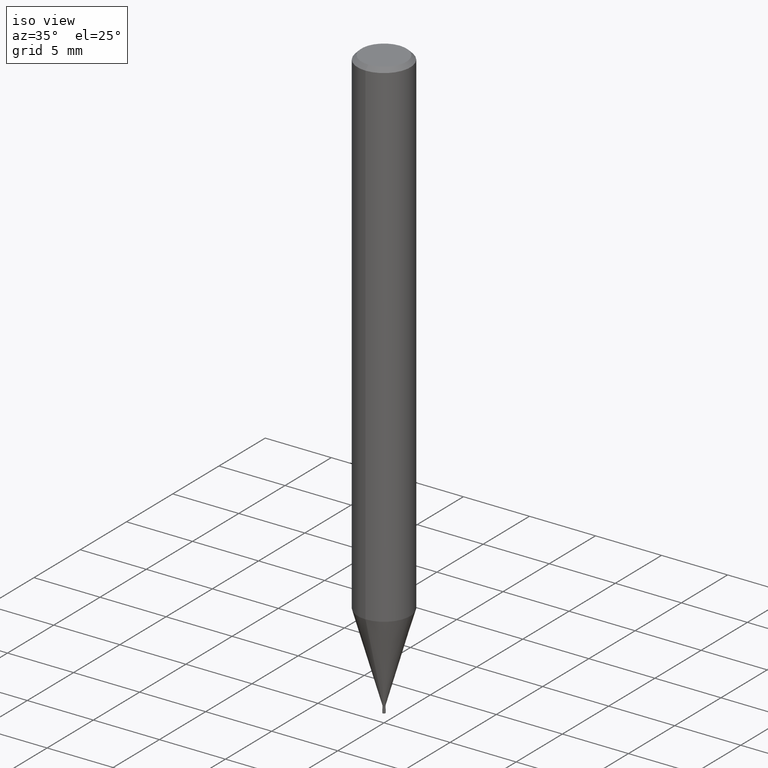
[diagram: clean part render]
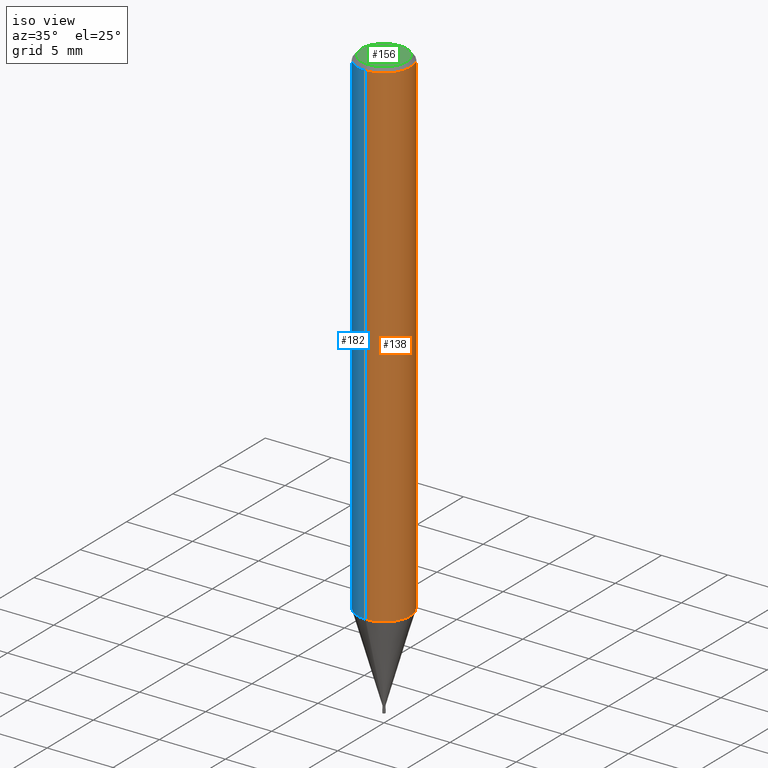
[diagram: same view with three faces highlighted in distinct colors, each labeled with its STEP entity id]
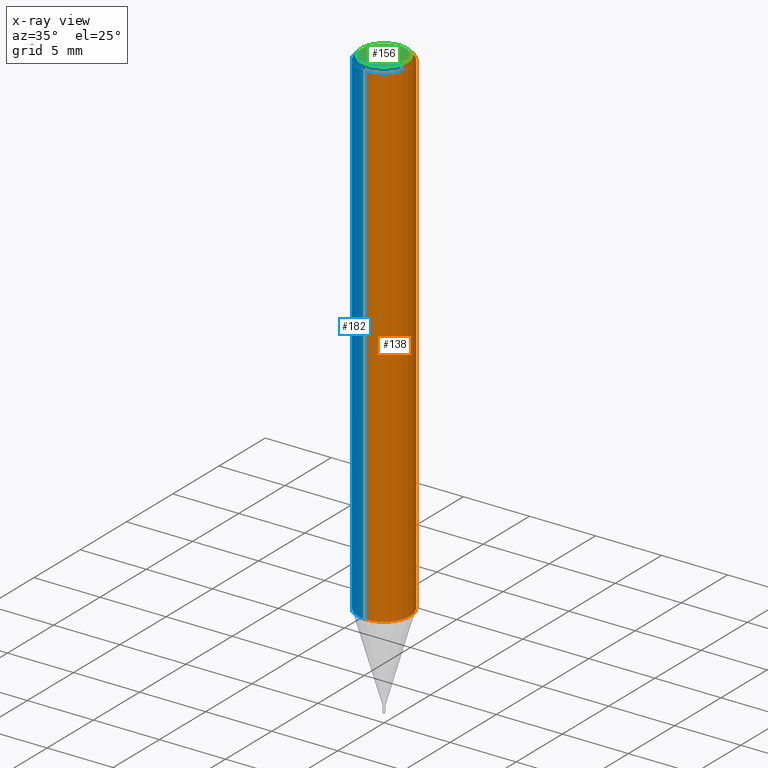
[diagram: x-ray of the same camera — body ghosted, the three highlighted faces saturated]
A machine part, iso view with three faces highlighted in distinct colors.
The next image is the same camera in x-ray (body ghosted, the three faces saturated) — at least one of them is partly hidden behind the body in this view.
Their STEP definitions:

[orange] entity #138 — the highlighted cylindrical surface (edge-blend (fillet) strip) has radius 2 mm, axis along (-0, -0, 1).
#92=EDGE_CURVE('',#200,#166,#229,.T.);
#96=EDGE_CURVE('',#166,#174,#233,.T.);
#124=EDGE_CURVE('',#162,#200,#266,.T.);
#138=ADVANCED_FACE('',(#280),#281,.T.);
#142=EDGE_CURVE('',#162,#174,#285,.T.);
#162=VERTEX_POINT('',#311);
#166=VERTEX_POINT('',#315);
#174=VERTEX_POINT('',#324);
#200=VERTEX_POINT('',#352);
#229=CIRCLE('',#375,2.0);
#233=LINE('',#382,#383);
#266=LINE('',#426,#427);
#280=FACE_OUTER_BOUND('',#443,.T.);
#281=CYLINDRICAL_SURFACE('',#444,2.0);
#285=CIRCLE('',#449,2.0);
#311=CARTESIAN_POINT('',(0.0,2.0,-0.299999999999997));
#315=CARTESIAN_POINT('',(2.44921270764475E-016,-2.0,-37.839));
#324=CARTESIAN_POINT('',(2.44921270764475E-016,-2.0,-0.299999999999997));
#352=CARTESIAN_POINT('',(0.0,2.0,-37.839));
#375=AXIS2_PLACEMENT_3D('',#542,#543,#544);
#382=CARTESIAN_POINT('',(2.44921270764475E-016,-2.0,-19.0695));
#383=VECTOR('',#546,1.0);
#426=CARTESIAN_POINT('',(-2.44921270764475E-016,2.0,-19.0695));
#427=VECTOR('',#595,1.0);
#443=EDGE_LOOP('',(#607,#608,#609,#610));
#444=AXIS2_PLACEMENT_3D('',#611,#612,#613);
#449=AXIS2_PLACEMENT_3D('',#614,#615,#616);
#542=CARTESIAN_POINT('',(0.0,0.0,-37.839));
#543=DIRECTION('',(0.0,0.0,-1.0));
#544=DIRECTION('',(0.0,1.0,0.0));
#546=DIRECTION('',(-0.0,-0.0,1.0));
#595=DIRECTION('',(0.0,0.0,-1.0));
#607=ORIENTED_EDGE('',*,*,#124,.F.);
#608=ORIENTED_EDGE('',*,*,#142,.T.);
#609=ORIENTED_EDGE('',*,*,#96,.F.);
#610=ORIENTED_EDGE('',*,*,#92,.F.);
#611=CARTESIAN_POINT('',(0.0,0.0,-19.0695));
#612=DIRECTION('',(-0.0,-0.0,1.0));
#613=DIRECTION('',(0.0,1.0,0.0));
#614=CARTESIAN_POINT('',(0.0,0.0,-0.299999999999997));
#615=DIRECTION('',(0.0,0.0,-1.0));
#616=DIRECTION('',(0.0,1.0,0.0));

[blue] entity #182 — the highlighted cylindrical surface (edge-blend (fillet) strip) has radius 2 mm, axis along (-0, -0, 1).
#96=EDGE_CURVE('',#166,#174,#233,.T.);
#124=EDGE_CURVE('',#162,#200,#266,.T.);
#162=VERTEX_POINT('',#311);
#166=VERTEX_POINT('',#315);
#168=EDGE_CURVE('',#166,#200,#317,.T.);
#174=VERTEX_POINT('',#324);
#182=ADVANCED_FACE('',(#332),#333,.T.);
#186=EDGE_CURVE('',#174,#162,#337,.T.);
#200=VERTEX_POINT('',#352);
#233=LINE('',#382,#383);
#266=LINE('',#426,#427);
#311=CARTESIAN_POINT('',(0.0,2.0,-0.299999999999997));
#315=CARTESIAN_POINT('',(2.44921270764475E-016,-2.0,-37.839));
#317=CIRCLE('',#487,2.0);
#324=CARTESIAN_POINT('',(2.44921270764475E-016,-2.0,-0.299999999999997));
#332=FACE_OUTER_BOUND('',#505,.T.);
#333=CYLINDRICAL_SURFACE('',#506,2.0);
#337=CIRCLE('',#513,2.0);
#352=CARTESIAN_POINT('',(0.0,2.0,-37.839));
#382=CARTESIAN_POINT('',(2.44921270764475E-016,-2.0,-19.0695));
#383=VECTOR('',#546,1.0);
#426=CARTESIAN_POINT('',(-2.44921270764475E-016,2.0,-19.0695));
#427=VECTOR('',#595,1.0);
#487=AXIS2_PLACEMENT_3D('',#660,#661,#662);
#505=EDGE_LOOP('',(#674,#675,#676,#677));
#506=AXIS2_PLACEMENT_3D('',#678,#679,#680);
#513=AXIS2_PLACEMENT_3D('',#682,#683,#684);
#546=DIRECTION('',(-0.0,-0.0,1.0));
#595=DIRECTION('',(0.0,0.0,-1.0));
#660=CARTESIAN_POINT('',(0.0,0.0,-37.839));
#661=DIRECTION('',(0.0,0.0,-1.0));
#662=DIRECTION('',(0.0,1.0,0.0));
#674=ORIENTED_EDGE('',*,*,#124,.T.);
#675=ORIENTED_EDGE('',*,*,#168,.F.);
#676=ORIENTED_EDGE('',*,*,#96,.T.);
#677=ORIENTED_EDGE('',*,*,#186,.T.);
#678=CARTESIAN_POINT('',(0.0,0.0,-19.0695));
#679=DIRECTION('',(-0.0,-0.0,1.0));
#680=DIRECTION('',(0.0,1.0,0.0));
#682=CARTESIAN_POINT('',(0.0,0.0,-0.299999999999997));
#683=DIRECTION('',(0.0,0.0,-1.0));
#684=DIRECTION('',(0.0,1.0,0.0));

[green] entity #156 — the highlighted planar face has unit normal (-0, 0, 1).
#128=VERTEX_POINT('',#270);
#134=EDGE_CURVE('',#128,#164,#276,.T.);
#156=ADVANCED_FACE('',(#304),#305,.T.);
#164=VERTEX_POINT('',#313);
#206=EDGE_CURVE('',#164,#128,#359,.T.);
#270=CARTESIAN_POINT('',(0.0,1.7,0.0));
#276=CIRCLE('',#439,1.7);
#304=FACE_OUTER_BOUND('',#471,.T.);
#305=PLANE('',#472);
#313=CARTESIAN_POINT('',(2.08183080149804E-016,-1.7,0.0));
#359=CIRCLE('',#538,1.7);
#439=AXIS2_PLACEMENT_3D('',#603,#604,#605);
#471=EDGE_LOOP('',(#654,#655));
#472=AXIS2_PLACEMENT_3D('',#656,#657,#658);
#538=AXIS2_PLACEMENT_3D('',#711,#712,#713);
#603=CARTESIAN_POINT('',(0.0,0.0,0.0));
#604=DIRECTION('',(0.0,0.0,-1.0));
#605=DIRECTION('',(0.0,1.0,0.0));
#654=ORIENTED_EDGE('',*,*,#134,.F.);
#655=ORIENTED_EDGE('',*,*,#206,.F.);
#656=CARTESIAN_POINT('',(0.0,0.85,0.0));
#657=DIRECTION('',(-0.0,0.0,1.0));
#658=DIRECTION('',(0.0,-1.0,0.0));
#711=CARTESIAN_POINT('',(0.0,0.0,0.0));
#712=DIRECTION('',(0.0,0.0,-1.0));
#713=DIRECTION('',(0.0,1.0,0.0));